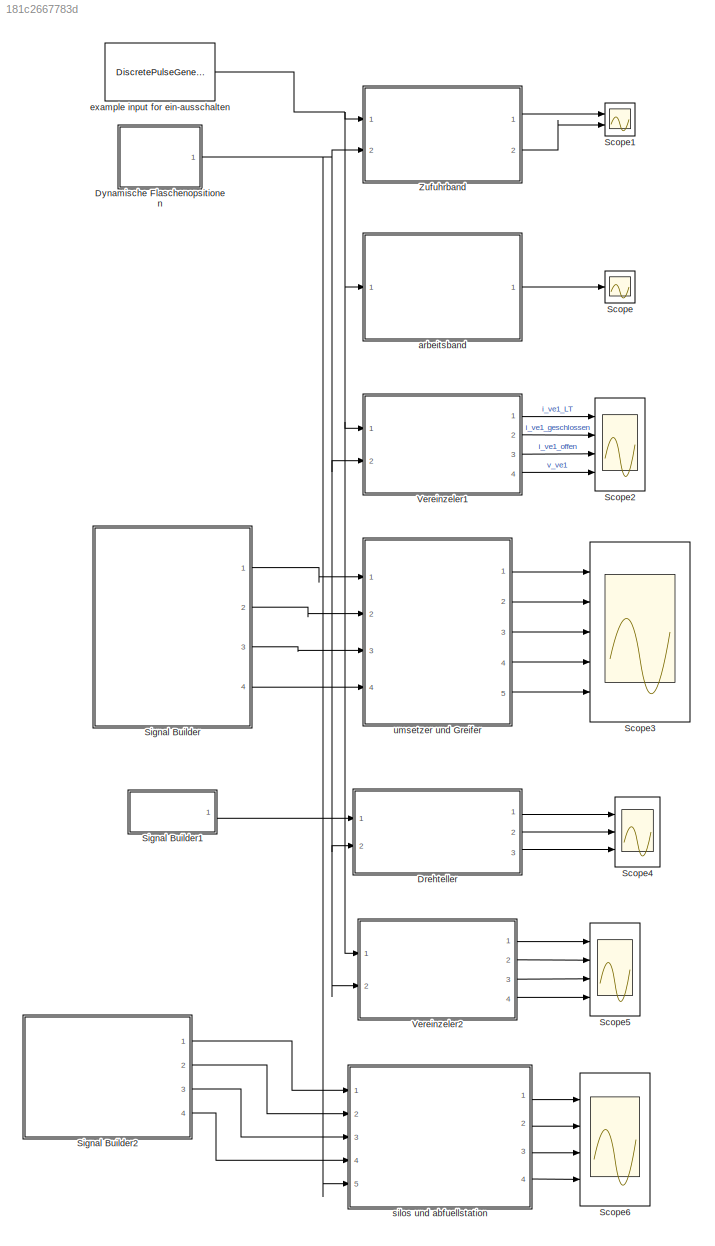
MODEL slx_181c2667783d
KIND model
CONFIG AbsTol = auto
CONFIG EnableMultiTasking = off
CONFIG FixedStep = 0.01
CONFIG MaxStep = auto
CONFIG MinStep = auto
CONFIG RelTol = 1e-3
CONFIG SampleTimeConstraint = Unconstrained
CONFIG SolverName = ode3
CONFIG StartTime = 0.0
CONFIG StopTime = 80
BLOCK [SubSystem] Drehteller
  Ports = [2, 3]
  RequestExecContextInheritance = off
BLOCK [Logic] Drehteller/AND
  AllPortsSameDT = off
  IconShape = distinctive
  OutDataTypeStr = boolean
  Ports = [2, 1]
BLOCK [Logic] Drehteller/AND1
  AllPortsSameDT = off
  IconShape = distinctive
  OutDataTypeStr = boolean
  Ports = [2, 1]
BLOCK [SubSystem] Drehteller/Chart1
  ErrorFcn = Stateflow.Translate.translate
  PermitHierarchicalResolution = ExplicitOnly
  Ports = [1, 1]
  RequestExecContextInheritance = off
  SFBlockType = Chart
  TreatAsAtomicUnit = on
BLOCK [Demux] Drehteller/Chart1/ Demux 
  Outputs = 1
  Ports = [1, 1]
BLOCK [S-Function] Drehteller/Chart1/ SFunction 
  EnableBusSupport = on
  FunctionName = sf_sfun
  PortCounts = [1 2]
  Ports = [1, 2]
  SFcnIsStateOwnerBlock = off
  SFunctionDeploymentMode = off
  Tag = Stateflow S-Function 1
BLOCK [Terminator] Drehteller/Chart1/ Terminator 
BLOCK [Inport] Drehteller/Chart1/i_Drehwinkel
BLOCK [Outport] Drehteller/Chart1/i_teller_ausgerichtet
BLOCK [Reference] Drehteller/Compare To Constant  REF=simulink/Logic and Bit
Operations/Compare
To Constant
  Ports = [1, 1]
  SourceBlock = simulink/Logic and Bit\nOperations/Compare\nTo Constant
  SourceProductBaseCode = SL
  SourceType = Compare To Constant
BLOCK [Reference] Drehteller/Compare To Constant1  REF=simulink/Logic and Bit
Operations/Compare
To Constant
  Ports = [1, 1]
  SourceBlock = simulink/Logic and Bit\nOperations/Compare\nTo Constant
  SourceProductBaseCode = SL
  SourceType = Compare To Constant
BLOCK [Reference] Drehteller/Compare To Constant2  REF=simulink/Logic and Bit
Operations/Compare
To Constant
  Ports = [1, 1]
  SourceBlock = simulink/Logic and Bit\nOperations/Compare\nTo Constant
  SourceProductBaseCode = SL
  SourceType = Compare To Constant
BLOCK [Reference] Drehteller/Compare To Constant3  REF=simulink/Logic and Bit
Operations/Compare
To Constant
  Ports = [1, 1]
  SourceBlock = simulink/Logic and Bit\nOperations/Compare\nTo Constant
  SourceProductBaseCode = SL
  SourceType = Compare To Constant
BLOCK [Reference] Drehteller/Compare To Constant4  REF=simulink/Logic and Bit
Operations/Compare
To Constant
  Ports = [1, 1]
  SourceBlock = simulink/Logic and Bit\nOperations/Compare\nTo Constant
  SourceProductBaseCode = SL
  SourceType = Compare To Constant
BLOCK [Reference] Drehteller/Compare To Constant7  REF=simulink/Logic and Bit
Operations/Compare
To Constant
  Ports = [1, 1]
  SourceBlock = simulink/Logic and Bit\nOperations/Compare\nTo Constant
  SourceProductBaseCode = SL
  SourceType = Compare To Constant
BLOCK [DotProduct] Drehteller/Dot Product1
  OutDataTypeStr = Inherit: Inherit via internal rule
BLOCK [DotProduct] Drehteller/Dot Product2
  OutDataTypeStr = Inherit: Inherit via internal rule
BLOCK [SubSystem] Drehteller/Drehteller
  Ports = [1, 2]
  RequestExecContextInheritance = off
BLOCK [Constant] Drehteller/Drehteller/Constant
  Value = -MRK/I
BLOCK [DeadZone] Drehteller/Drehteller/Dead Zone
BLOCK [Gain] Drehteller/Drehteller/Gain
  Gain = U
BLOCK [Gain] Drehteller/Drehteller/Gain1
  Gain = K*PHI*igetr/Ra/I
BLOCK [Gain] Drehteller/Drehteller/Gain2
  Gain = -K^2*PHI^2*igetr^2/Ra/I
BLOCK [Gain] Drehteller/Drehteller/Gain3
  Gain = -A/I
BLOCK [Integrator] Drehteller/Drehteller/Integrator
  Ports = [1, 1]
BLOCK [Integrator] Drehteller/Drehteller/Integrator1
  Ports = [1, 1]
BLOCK [Product] Drehteller/Drehteller/Product
  Ports = [2, 1]
BLOCK [Scope] Drehteller/Drehteller/Scope
  Floating = off
  NumInputPorts = 3
  Ports = [3]
  ScopeSpecificationString = Simulink.scopes.TimeScopeBlockCfg('CurrentConfiguration', extmgr.ConfigurationSet(extmgr.Configuration('Core','General UI',true),extmgr.Configuration('Core','Source UI',true),extmgr.Configuration('Sources','WiredSimulink',true,'DataLoggingVariableName','ScopeData1'),extmgr.Configuration('Visuals','Time Domain',true,'SerializedDisplays',{struct('MinYLimReal','-0.125','MaxYLimReal','1.125','YLabelRe...<+1476ch>
BLOCK [Scope] Drehteller/Drehteller/Scope1
  Floating = off
  NumInputPorts = 2
  Ports = [2]
  ScopeSpecificationString = Simulink.scopes.TimeScopeBlockCfg('CurrentConfiguration', extmgr.ConfigurationSet(extmgr.Configuration('Core','General UI',true),extmgr.Configuration('Core','Source UI',true),extmgr.Configuration('Sources','WiredSimulink',true,'DataLoggingVariableName','ScopeData2'),extmgr.Configuration('Visuals','Time Domain',true,'SerializedDisplays',{struct('MinYLimReal','-0.125','MaxYLimReal','1.125','YLabelRe...<+1412ch>
BLOCK [Signum] Drehteller/Drehteller/Sign
BLOCK [Sum] Drehteller/Drehteller/Sum
  Inputs = |++
  NameLocation = top
  Ports = [2, 1]
BLOCK [Sum] Drehteller/Drehteller/Sum1
  Inputs = |++
  Ports = [2, 1]
BLOCK [Sum] Drehteller/Drehteller/Sum2
  Inputs = |++
  Ports = [2, 1]
BLOCK [Outport] Drehteller/Drehteller/alpha
  NameLocation = right
  Port = 2
BLOCK [Inport] Drehteller/Drehteller/o_teller
BLOCK [Outport] Drehteller/Drehteller/omega_teller
BLOCK [Signum] Drehteller/Drehteller/without Daedzone
BLOCK [Inport] Drehteller/Flaschenpositionen
  Port = 2
BLOCK [Logic] Drehteller/OR
  AllPortsSameDT = off
  IconShape = distinctive
  Operator = OR
  OutDataTypeStr = boolean
  Ports = [2, 1]
BLOCK [Inport] Drehteller/O_teller
BLOCK [Reference] Drehteller/Radians to Degrees  REF=simulink_extras/Transformations/Radians
to Degrees
  Ports = [1, 1]
  SourceBlock = simulink_extras/Transformations/Radians\nto Degrees
  SourceProductBaseCode = SL
  SourceType = RadiansToDegrees
BLOCK [Gain] Drehteller/Radius von Drehteller
  Gain = 100/2/pi
BLOCK [Scope] Drehteller/Scope
  Floating = off
  NumInputPorts = 1
  Ports = [1]
  ScopeSpecificationString = Simulink.scopes.TimeScopeBlockCfg('CurrentConfiguration', extmgr.ConfigurationSet(extmgr.Configuration('Core','General UI',true),extmgr.Configuration('Core','Source UI',true),extmgr.Configuration('Sources','WiredSimulink',true,'DataLoggingVariableName','ScopeData10'),extmgr.Configuration('Visuals','Time Domain',true,'SerializedDisplays',{struct('MinYLimReal','-0.125','MaxYLimReal','1.125','YLabelR...<+1350ch>
BLOCK [Scope] Drehteller/Scope1
  Floating = off
  NumInputPorts = 1
  Ports = [1]
  ScopeSpecificationString = Simulink.scopes.TimeScopeBlockCfg('CurrentConfiguration', extmgr.ConfigurationSet(extmgr.Configuration('Core','General UI',true),extmgr.Configuration('Core','Source UI',true),extmgr.Configuration('Sources','WiredSimulink',true,'DataLoggingVariableName','ScopeData6'),extmgr.Configuration('Visuals','Time Domain',true,'SerializedDisplays',{struct('MinYLimReal','-0.125','MaxYLimReal','1.125','YLabelRe...<+1478ch>
BLOCK [Scope] Drehteller/Scope2
  Floating = off
  NumInputPorts = 2
  Ports = [2]
  ScopeSpecificationString = Simulink.scopes.TimeScopeBlockCfg('CurrentConfiguration', extmgr.ConfigurationSet(extmgr.Configuration('Core','General UI',true),extmgr.Configuration('Core','Source UI',true),extmgr.Configuration('Sources','WiredSimulink',true,'DataLoggingVariableName','ScopeData8'),extmgr.Configuration('Visuals','Time Domain',true,'SerializedDisplays',{struct('MinYLimReal','-1.21228','MaxYLimReal','10.91052','YLa...<+1460ch>
BLOCK [Scope] Drehteller/Scope3
  Floating = off
  NumInputPorts = 1
  Ports = [1]
  ScopeSpecificationString = Simulink.scopes.TimeScopeBlockCfg('CurrentConfiguration', extmgr.ConfigurationSet(extmgr.Configuration('Core','General UI',true),extmgr.Configuration('Core','Source UI',true),extmgr.Configuration('Sources','WiredSimulink',true,'DataLoggingVariableName','ScopeData9'),extmgr.Configuration('Visuals','Time Domain',true),extmgr.Configuration('Tools','Plot Navigation',true),extmgr.Configuration('Tools',...<+40ch>
BLOCK [Scope] Drehteller/Scope4
  Floating = off
  NumInputPorts = 1
  Ports = [1]
  ScopeSpecificationString = Simulink.scopes.TimeScopeBlockCfg('CurrentConfiguration', extmgr.ConfigurationSet(extmgr.Configuration('Core','General UI',true),extmgr.Configuration('Core','Source UI',true),extmgr.Configuration('Sources','WiredSimulink',true,'DataLoggingVariableName','ScopeData7'),extmgr.Configuration('Visuals','Time Domain',true,'SerializedDisplays',{struct('MinYLimReal','-0.125','MaxYLimReal','1.125','YLabelRe...<+1478ch>
BLOCK [Outport] Drehteller/i_teller_ausger
BLOCK [Outport] Drehteller/i_teller_behaelter
  Port = 2
BLOCK [Outport] Drehteller/v_teller
  Port = 3
BLOCK [SubSystem] Dynamische Flaschenopsitionen
  Ports = [0, 1]
  RequestExecContextInheritance = off
BLOCK [Outport] Dynamische Flaschenopsitionen/Anfangsposition
BLOCK [Gain] Dynamische Flaschenopsitionen/Bahngeschwindigkeit1
  Gain = 100/5
BLOCK [Integrator] Dynamische Flaschenopsitionen/Integrator1
  Ports = [1, 1]
BLOCK [Scope] Dynamische Flaschenopsitionen/Scope2
  Floating = off
  NumInputPorts = 1
  Ports = [1]
  ScopeSpecificationString = Simulink.scopes.TimeScopeBlockCfg('CurrentConfiguration', extmgr.ConfigurationSet(extmgr.Configuration('Core','General UI',true),extmgr.Configuration('Core','Source UI',true),extmgr.Configuration('Sources','WiredSimulink',true,'DataLoggingVariableName','ScopeData1'),extmgr.Configuration('Visuals','Time Domain',true,'SerializedDisplays',{struct('MinYLimReal','-25.00000','MaxYLimReal','225.00000','Y...<+1883ch>
BLOCK [Sum] Dynamische Flaschenopsitionen/Sum1
  Inputs = |++
  Ports = [2, 1]
BLOCK [Constant] Dynamische Flaschenopsitionen/example input for Flaschenpositionen2
  Value = [0,1,2,3,4,5,6,7,8,9,10,20,25,30,35,40,43,60,63,70,90,100,120,130,190]
BLOCK [DiscretePulseGenerator] Dynamische Flaschenopsitionen/example input for o_band_zufuhr1
  Ports = [0, 1]
  PulseType = Time based
  PulseWidth = 50
BLOCK [Scope] Scope
  Floating = off
  NumInputPorts = 1
  Ports = [1]
  ScopeSpecificationString = Simulink.scopes.TimeScopeBlockCfg('CurrentConfiguration', extmgr.ConfigurationSet(extmgr.Configuration('Core','General UI',true),extmgr.Configuration('Core','Source UI',true),extmgr.Configuration('Sources','WiredSimulink',true,'DataLoggingVariableName','ScopeData3'),extmgr.Configuration('Visuals','Time Domain',true,'SerializedDisplays',{struct('MinYLimReal','-0.41667','MaxYLimReal','3.75','YLabelR...<+1358ch>
BLOCK [Scope] Scope1
  Floating = off
  NumInputPorts = 2
  Ports = [2]
  ScopeSpecificationString = Simulink.scopes.TimeScopeBlockCfg('CurrentConfiguration', extmgr.ConfigurationSet(extmgr.Configuration('Core','General UI',true),extmgr.Configuration('Core','Source UI',true),extmgr.Configuration('Sources','WiredSimulink',true,'DataLoggingVariableName','ScopeData9'),extmgr.Configuration('Visuals','Time Domain',true,'SerializedDisplays',{struct('MinYLimReal','-0.125','MaxYLimReal','1.125','YLabelRe...<+1963ch>
BLOCK [Scope] Scope2
  Floating = off
  NumInputPorts = 4
  Ports = [4]
  ScopeSpecificationString = Simulink.scopes.TimeScopeBlockCfg('CurrentConfiguration', extmgr.ConfigurationSet(extmgr.Configuration('Core','General UI',true),extmgr.Configuration('Core','Source UI',true),extmgr.Configuration('Sources','WiredSimulink',true,'DataLoggingVariableName','ScopeData4'),extmgr.Configuration('Visuals','Time Domain',true,'SerializedDisplays',{struct('MinYLimReal','-0.125','MaxYLimReal','1.125','YLabelRe...<+3412ch>
BLOCK [Scope] Scope3
  Floating = off
  NumInputPorts = 5
  Ports = [5]
  ScopeSpecificationString = Simulink.scopes.TimeScopeBlockCfg('CurrentConfiguration', extmgr.ConfigurationSet(extmgr.Configuration('Core','General UI',true),extmgr.Configuration('Core','Source UI',true),extmgr.Configuration('Sources','WiredSimulink',true,'DataLoggingVariableName','ScopeData5'),extmgr.Configuration('Visuals','Time Domain',true,'SerializedDisplays',{struct('MinYLimReal','-0.125','MaxYLimReal','1.125','YLabelRe...<+4918ch>
BLOCK [Scope] Scope4
  Floating = off
  NumInputPorts = 3
  Ports = [3]
  ScopeSpecificationString = Simulink.scopes.TimeScopeBlockCfg('CurrentConfiguration', extmgr.ConfigurationSet(extmgr.Configuration('Core','General UI',true),extmgr.Configuration('Core','Source UI',true),extmgr.Configuration('Sources','WiredSimulink',true,'DataLoggingVariableName','ScopeData11'),extmgr.Configuration('Visuals','Time Domain',true,'SerializedDisplays',{struct('MinYLimReal','-0.125','MaxYLimReal','1.125','YLabelR...<+2947ch>
BLOCK [Scope] Scope5
  Floating = off
  NumInputPorts = 4
  Ports = [4]
  ScopeSpecificationString = Simulink.scopes.TimeScopeBlockCfg('CurrentConfiguration', extmgr.ConfigurationSet(extmgr.Configuration('Core','General UI',true),extmgr.Configuration('Core','Source UI',true),extmgr.Configuration('Sources','WiredSimulink',true,'DataLoggingVariableName','ScopeData14'),extmgr.Configuration('Visuals','Time Domain',true,'SerializedDisplays',{struct('MinYLimReal','-0.125','MaxYLimReal','1.125','YLabelR...<+3430ch>
BLOCK [Scope] Scope6
  Floating = off
  NumInputPorts = 4
  Ports = [4]
  ScopeSpecificationString = Simulink.scopes.TimeScopeBlockCfg('CurrentConfiguration', extmgr.ConfigurationSet(extmgr.Configuration('Core','General UI',true),extmgr.Configuration('Core','Source UI',true),extmgr.Configuration('Sources','WiredSimulink',true,'DataLoggingVariableName','ScopeData15'),extmgr.Configuration('Visuals','Time Domain',true,'SerializedDisplays',{struct('MinYLimReal','-0.125','MaxYLimReal','1.125','YLabelR...<+3526ch>
BLOCK [SubSystem] Signal Builder
  ClipboardFcn = sigbuilder_block('clipboard');
  CloseFcn = sigbuilder_block('close');
  ContinueFcn = sigbuilder_block('continue');
  CopyFcn = sigbuilder_block('copy');
  DeleteFcn = sigbuilder_block('delete');
  LoadFcn = sigbuilder_block('load',[437.6 199.2 550.4 400 ]);
  MaskHideContents = on
  ModelCloseFcn = sigbuilder_block('modelClose');
  NameChangeFcn = sigbuilder_block('namechange');
  OpenFcn = sigbuilder_block('open',[437.6 199.2 550.4 400 ]);
  PauseFcn = sigbuilder_block('pause');
  Ports = [0, 4]
  PreSaveFcn = sigbuilder_block('preSave');
  RequestExecContextInheritance = off
  StartFcn = sigbuilder_block('start');
  StopFcn = sigbuilder_block('stop');
  Tag = STV Subsys
BLOCK [Demux] Signal Builder/Demux
  DisplayOption = none
  Ports = [1, 4]
  Tag = STV Demux
BLOCK [FromWorkspace] Signal Builder/FromWs
  Tag = STV FromWs
  VariableName = tuvar
BLOCK [Outport] Signal Builder/Signal 1
  Tag = STV Outport
BLOCK [Outport] Signal Builder/Signal 2
  Port = 2
  Tag = STV Outport
BLOCK [Outport] Signal Builder/Signal 3
  Port = 3
  Tag = STV Outport
BLOCK [Outport] Signal Builder/Signal 4
  Port = 4
  Tag = STV Outport
BLOCK [SubSystem] Signal Builder1
  ClipboardFcn = sigbuilder_block('clipboard');
  CloseFcn = sigbuilder_block('close');
  ContinueFcn = sigbuilder_block('continue');
  CopyFcn = sigbuilder_block('copy');
  DeleteFcn = sigbuilder_block('delete');
  LoadFcn = sigbuilder_block('load');
  MaskHideContents = on
  ModelCloseFcn = sigbuilder_block('modelClose');
  NameChangeFcn = sigbuilder_block('namechange');
  OpenFcn = sigbuilder_block('open',[279 117 550.8 361.8 ]);
  PauseFcn = sigbuilder_block('pause');
  Ports = [0, 1]
  PreSaveFcn = sigbuilder_block('preSave');
  RequestExecContextInheritance = off
  StartFcn = sigbuilder_block('start');
  StopFcn = sigbuilder_block('stop');
  Tag = STV Subsys
BLOCK [Demux] Signal Builder1/Demux
  DisplayOption = none
  Outputs = 1
  Ports = [1, 1]
  Tag = STV Demux
BLOCK [FromWorkspace] Signal Builder1/FromWs
  Tag = STV FromWs
  VariableName = tuvar
BLOCK [Outport] Signal Builder1/Signal 1
  Tag = STV Outport
  VectorParamsAs1DForOutWhenUnconnected = off
BLOCK [SubSystem] Signal Builder2
  ClipboardFcn = sigbuilder_block('clipboard');
  CloseFcn = sigbuilder_block('close');
  ContinueFcn = sigbuilder_block('continue');
  CopyFcn = sigbuilder_block('copy');
  DeleteFcn = sigbuilder_block('delete');
  LoadFcn = sigbuilder_block('load');
  MaskHideContents = on
  ModelCloseFcn = sigbuilder_block('modelClose');
  NameChangeFcn = sigbuilder_block('namechange');
  OpenFcn = sigbuilder_block('open',[61.5 156.75 659.25 447 ]);
  PauseFcn = sigbuilder_block('pause');
  Ports = [0, 4]
  PreSaveFcn = sigbuilder_block('preSave');
  RequestExecContextInheritance = off
  StartFcn = sigbuilder_block('start');
  StopFcn = sigbuilder_block('stop');
  Tag = STV Subsys
BLOCK [Demux] Signal Builder2/Demux
  DisplayOption = none
  Ports = [1, 4]
  Tag = STV Demux
BLOCK [FromWorkspace] Signal Builder2/FromWs
  Tag = STV FromWs
  VariableName = tuvar
BLOCK [Outport] Signal Builder2/Signal 1
  Tag = STV Outport
  VectorParamsAs1DForOutWhenUnconnected = off
BLOCK [Outport] Signal Builder2/Signal 2
  Port = 2
  Tag = STV Outport
  VectorParamsAs1DForOutWhenUnconnected = off
BLOCK [Outport] Signal Builder2/Signal 3
  Port = 3
  Tag = STV Outport
  VectorParamsAs1DForOutWhenUnconnected = off
BLOCK [Outport] Signal Builder2/Signal 4
  Port = 4
  Tag = STV Outport
  VectorParamsAs1DForOutWhenUnconnected = off
BLOCK [SubSystem] Vereinzeler1
  Ports = [2, 4]
  RequestExecContextInheritance = off
BLOCK [Logic] Vereinzeler1/AND
  AllPortsSameDT = off
  IconShape = distinctive
  OutDataTypeStr = boolean
  Ports = [2, 1]
BLOCK [Reference] Vereinzeler1/Compare To Constant  REF=simulink/Logic and Bit
Operations/Compare
To Constant
  Ports = [1, 1]
  SourceBlock = simulink/Logic and Bit\nOperations/Compare\nTo Constant
  SourceProductBaseCode = SL
  SourceType = Compare To Constant
BLOCK [Reference] Vereinzeler1/Compare To Constant1  REF=simulink/Logic and Bit
Operations/Compare
To Constant
  Ports = [1, 1]
  SourceBlock = simulink/Logic and Bit\nOperations/Compare\nTo Constant
  SourceProductBaseCode = SL
  SourceType = Compare To Constant
BLOCK [Reference] Vereinzeler1/Compare To Constant2  REF=simulink/Logic and Bit
Operations/Compare
To Constant
  Ports = [1, 1]
  SourceBlock = simulink/Logic and Bit\nOperations/Compare\nTo Constant
  SourceProductBaseCode = SL
  SourceType = Compare To Constant
BLOCK [Reference] Vereinzeler1/Compare To Constant3  REF=simulink/Logic and Bit
Operations/Compare
To Constant
  Ports = [1, 1]
  SourceBlock = simulink/Logic and Bit\nOperations/Compare\nTo Constant
  SourceProductBaseCode = SL
  SourceType = Compare To Constant
BLOCK [Reference] Vereinzeler1/Compare To Constant7  REF=simulink/Logic and Bit
Operations/Compare
To Constant
  Ports = [1, 1]
  SourceBlock = simulink/Logic and Bit\nOperations/Compare\nTo Constant
  SourceProductBaseCode = SL
  SourceType = Compare To Constant
BLOCK [DotProduct] Vereinzeler1/Dot Product1
  OutDataTypeStr = Inherit: Inherit via internal rule
BLOCK [Inport] Vereinzeler1/Flaschenpositionen
  Port = 2
BLOCK [Gain] Vereinzeler1/Gain
  Gain = 16
BLOCK [Integrator] Vereinzeler1/Integrator 0 bis 4
  LimitOutput = on
  LowerSaturationLimit = 0
  Ports = [1, 1]
  UpperSaturationLimit = 4
BLOCK [Logic] Vereinzeler1/NOT
  AllPortsSameDT = off
  IconShape = distinctive
  Operator = NOT
  OutDataTypeStr = boolean
  Ports = [1, 1]
BLOCK [Scope] Vereinzeler1/Scope
  Floating = off
  NumInputPorts = 2
  Ports = [2]
  ScopeSpecificationString = Simulink.scopes.TimeScopeBlockCfg('CurrentConfiguration', extmgr.ConfigurationSet(extmgr.Configuration('Core','General UI',true),extmgr.Configuration('Core','Source UI',true),extmgr.Configuration('Sources','WiredSimulink',true,'DataLoggingVariableName','ScopeData5'),extmgr.Configuration('Visuals','Time Domain',true,'SerializedDisplays',{struct('MinYLimReal','-0.125','MaxYLimReal','1.125','YLabelRe...<+2006ch>
BLOCK [Scope] Vereinzeler1/Scope1
  Floating = off
  NumInputPorts = 1
  Ports = [1]
  ScopeSpecificationString = Simulink.scopes.TimeScopeBlockCfg('CurrentConfiguration', extmgr.ConfigurationSet(extmgr.Configuration('Core','General UI',true),extmgr.Configuration('Core','Source UI',true),extmgr.Configuration('Sources','WiredSimulink',true,'DataLoggingVariableName','ScopeData6'),extmgr.Configuration('Visuals','Time Domain',true,'SerializedDisplays',{struct('MinYLimReal','-0.125','MaxYLimReal','1.125','YLabelRe...<+1478ch>
BLOCK [Scope] Vereinzeler1/Scope2
  Floating = off
  NumInputPorts = 2
  Ports = [2]
  ScopeSpecificationString = Simulink.scopes.TimeScopeBlockCfg('CurrentConfiguration', extmgr.ConfigurationSet(extmgr.Configuration('Core','General UI',true),extmgr.Configuration('Core','Source UI',true),extmgr.Configuration('Sources','WiredSimulink',true,'DataLoggingVariableName','ScopeData11'),extmgr.Configuration('Visuals','Time Domain',true,'SerializedDisplays',{struct('MinYLimReal','-0.125','MaxYLimReal','1.125','YLabelR...<+2067ch>
BLOCK [Scope] Vereinzeler1/Scope3
  Floating = off
  NumInputPorts = 1
  Ports = [1]
  ScopeSpecificationString = Simulink.scopes.TimeScopeBlockCfg('CurrentConfiguration', extmgr.ConfigurationSet(extmgr.Configuration('Core','General UI',true),extmgr.Configuration('Core','Source UI',true),extmgr.Configuration('Sources','WiredSimulink',true,'DataLoggingVariableName','ScopeData12'),extmgr.Configuration('Visuals','Time Domain',true,'SerializedDisplays',{struct('MinYLimReal','-0.5','MaxYLimReal','4.5','YLabelReal'...<+1337ch>
BLOCK [Outport] Vereinzeler1/i_ve1_LT
BLOCK [Outport] Vereinzeler1/i_ve1_geschlossen
  Port = 2
BLOCK [Outport] Vereinzeler1/i_ve1_offen
  Port = 3
BLOCK [Sum] Vereinzeler1/if input = 0 ->-1
  IconShape = rectangular
  Inputs = +-
  Ports = [2, 1]
BLOCK [Inport] Vereinzeler1/o_ve1
BLOCK [Outport] Vereinzeler1/v_ve1
  Port = 4
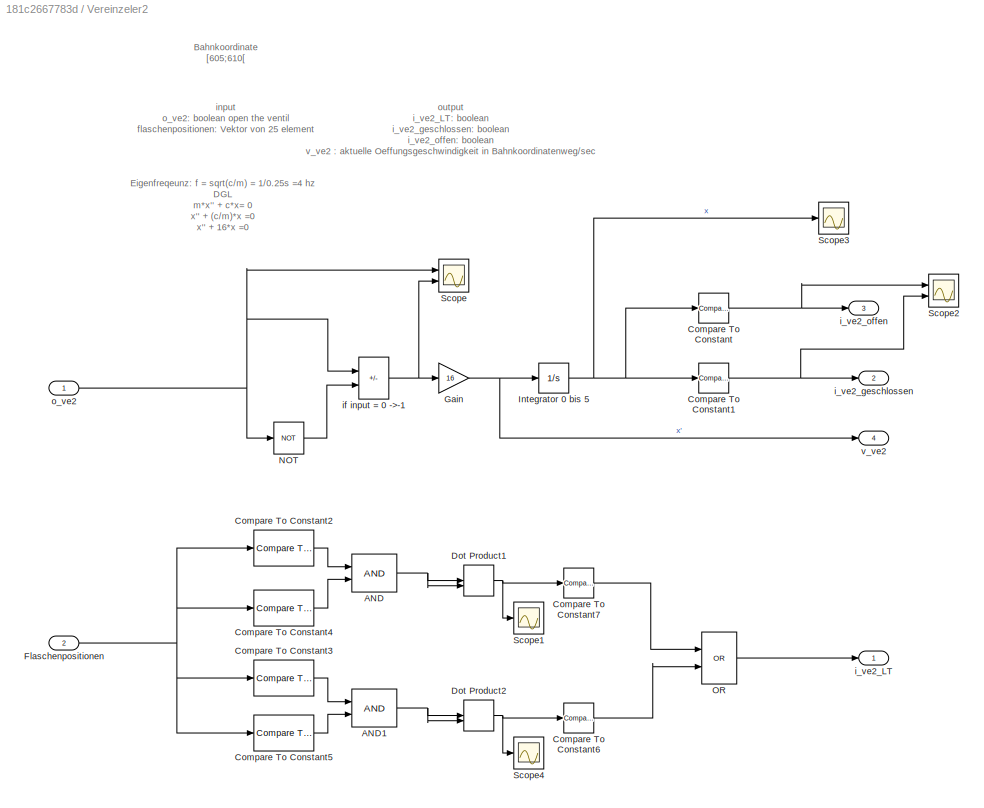
BLOCK [SubSystem] Vereinzeler2
  Ports = [2, 4]
  RequestExecContextInheritance = off
BLOCK [Logic] Vereinzeler2/AND
  AllPortsSameDT = off
  IconShape = distinctive
  OutDataTypeStr = boolean
  Ports = [2, 1]
BLOCK [Logic] Vereinzeler2/AND1
  AllPortsSameDT = off
  IconShape = distinctive
  OutDataTypeStr = boolean
  Ports = [2, 1]
BLOCK [Reference] Vereinzeler2/Compare To Constant  REF=simulink/Logic and Bit
Operations/Compare
To Constant
  Ports = [1, 1]
  SourceBlock = simulink/Logic and Bit\nOperations/Compare\nTo Constant
  SourceProductBaseCode = SL
  SourceType = Compare To Constant
BLOCK [Reference] Vereinzeler2/Compare To Constant1  REF=simulink/Logic and Bit
Operations/Compare
To Constant
  Ports = [1, 1]
  SourceBlock = simulink/Logic and Bit\nOperations/Compare\nTo Constant
  SourceProductBaseCode = SL
  SourceType = Compare To Constant
BLOCK [Reference] Vereinzeler2/Compare To Constant2  REF=simulink/Logic and Bit
Operations/Compare
To Constant
  Ports = [1, 1]
  SourceBlock = simulink/Logic and Bit\nOperations/Compare\nTo Constant
  SourceProductBaseCode = SL
  SourceType = Compare To Constant
BLOCK [Reference] Vereinzeler2/Compare To Constant3  REF=simulink/Logic and Bit
Operations/Compare
To Constant
  Ports = [1, 1]
  SourceBlock = simulink/Logic and Bit\nOperations/Compare\nTo Constant
  SourceProductBaseCode = SL
  SourceType = Compare To Constant
BLOCK [Reference] Vereinzeler2/Compare To Constant4  REF=simulink/Logic and Bit
Operations/Compare
To Constant
  Ports = [1, 1]
  SourceBlock = simulink/Logic and Bit\nOperations/Compare\nTo Constant
  SourceProductBaseCode = SL
  SourceType = Compare To Constant
BLOCK [Reference] Vereinzeler2/Compare To Constant5  REF=simulink/Logic and Bit
Operations/Compare
To Constant
  Ports = [1, 1]
  SourceBlock = simulink/Logic and Bit\nOperations/Compare\nTo Constant
  SourceProductBaseCode = SL
  SourceType = Compare To Constant
BLOCK [Reference] Vereinzeler2/Compare To Constant6  REF=simulink/Logic and Bit
Operations/Compare
To Constant
  Ports = [1, 1]
  SourceBlock = simulink/Logic and Bit\nOperations/Compare\nTo Constant
  SourceProductBaseCode = SL
  SourceType = Compare To Constant
BLOCK [Reference] Vereinzeler2/Compare To Constant7  REF=simulink/Logic and Bit
Operations/Compare
To Constant
  Ports = [1, 1]
  SourceBlock = simulink/Logic and Bit\nOperations/Compare\nTo Constant
  SourceProductBaseCode = SL
  SourceType = Compare To Constant
BLOCK [DotProduct] Vereinzeler2/Dot Product1
  OutDataTypeStr = Inherit: Inherit via internal rule
BLOCK [DotProduct] Vereinzeler2/Dot Product2
  OutDataTypeStr = Inherit: Inherit via internal rule
BLOCK [Inport] Vereinzeler2/Flaschenpositionen
  Port = 2
BLOCK [Gain] Vereinzeler2/Gain
  Gain = 16
BLOCK [Integrator] Vereinzeler2/Integrator 0 bis 5
  LimitOutput = on
  LowerSaturationLimit = 0
  Ports = [1, 1]
  UpperSaturationLimit = 5
BLOCK [Logic] Vereinzeler2/NOT
  AllPortsSameDT = off
  IconShape = distinctive
  Operator = NOT
  OutDataTypeStr = boolean
  Ports = [1, 1]
BLOCK [Logic] Vereinzeler2/OR
  AllPortsSameDT = off
  IconShape = distinctive
  Operator = OR
  OutDataTypeStr = boolean
  Ports = [2, 1]
BLOCK [Scope] Vereinzeler2/Scope
  Floating = off
  NumInputPorts = 2
  Ports = [2]
  ScopeSpecificationString = Simulink.scopes.TimeScopeBlockCfg('CurrentConfiguration', extmgr.ConfigurationSet(extmgr.Configuration('Core','General UI',true),extmgr.Configuration('Core','Source UI',true),extmgr.Configuration('Sources','WiredSimulink',true,'DataLoggingVariableName','ScopeData5'),extmgr.Configuration('Visuals','Time Domain',true,'SerializedDisplays',{struct('MinYLimReal','-0.125','MaxYLimReal','1.125','YLabelRe...<+2006ch>
BLOCK [Scope] Vereinzeler2/Scope1
  Floating = off
  NumInputPorts = 1
  Ports = [1]
  ScopeSpecificationString = Simulink.scopes.TimeScopeBlockCfg('CurrentConfiguration', extmgr.ConfigurationSet(extmgr.Configuration('Core','General UI',true),extmgr.Configuration('Core','Source UI',true),extmgr.Configuration('Sources','WiredSimulink',true,'DataLoggingVariableName','ScopeData12'),extmgr.Configuration('Visuals','Time Domain',true,'SerializedDisplays',{struct('MinYLimReal','-0.125','MaxYLimReal','1.125','YLabelR...<+1479ch>
BLOCK [Scope] Vereinzeler2/Scope2
  Floating = off
  NumInputPorts = 2
  Ports = [2]
  ScopeSpecificationString = Simulink.scopes.TimeScopeBlockCfg('CurrentConfiguration', extmgr.ConfigurationSet(extmgr.Configuration('Core','General UI',true),extmgr.Configuration('Core','Source UI',true),extmgr.Configuration('Sources','WiredSimulink',true,'DataLoggingVariableName','ScopeData11'),extmgr.Configuration('Visuals','Time Domain',true,'SerializedDisplays',{struct('MinYLimReal','-0.125','MaxYLimReal','1.125','YLabelR...<+2067ch>
BLOCK [Scope] Vereinzeler2/Scope3
  Floating = off
  NumInputPorts = 1
  Ports = [1]
  ScopeSpecificationString = Simulink.scopes.TimeScopeBlockCfg('CurrentConfiguration', extmgr.ConfigurationSet(extmgr.Configuration('Core','General UI',true),extmgr.Configuration('Core','Source UI',true),extmgr.Configuration('Sources','WiredSimulink',true,'DataLoggingVariableName','ScopeData12'),extmgr.Configuration('Visuals','Time Domain',true,'SerializedDisplays',{struct('MinYLimReal','-0.5','MaxYLimReal','4.5','YLabelReal'...<+1337ch>
BLOCK [Scope] Vereinzeler2/Scope4
  Floating = off
  NumInputPorts = 1
  Ports = [1]
  ScopeSpecificationString = Simulink.scopes.TimeScopeBlockCfg('CurrentConfiguration', extmgr.ConfigurationSet(extmgr.Configuration('Core','General UI',true),extmgr.Configuration('Core','Source UI',true),extmgr.Configuration('Sources','WiredSimulink',true,'DataLoggingVariableName','ScopeData13'),extmgr.Configuration('Visuals','Time Domain',true,'SerializedDisplays',{struct('MinYLimReal','-0.125','MaxYLimReal','1.125','YLabelR...<+1479ch>
BLOCK [Outport] Vereinzeler2/i_ve2_LT
BLOCK [Outport] Vereinzeler2/i_ve2_geschlossen
  Port = 2
BLOCK [Outport] Vereinzeler2/i_ve2_offen
  Port = 3
BLOCK [Sum] Vereinzeler2/if input = 0 ->-1
  IconShape = rectangular
  Inputs = +-
  Ports = [2, 1]
BLOCK [Inport] Vereinzeler2/o_ve2
BLOCK [Outport] Vereinzeler2/v_ve2
  Port = 4
BLOCK [SubSystem] Zufuhrband
  Ports = [2, 2]
  RequestExecContextInheritance = off
BLOCK [Logic] Zufuhrband/AND1
  AllPortsSameDT = off
  IconShape = distinctive
  OutDataTypeStr = boolean
  Ports = [2, 1]
BLOCK [Scope] Zufuhrband/Andere Methode fuer i_zufuhr_LT
  Floating = off
  NumInputPorts = 1
  Ports = [1]
  ScopeSpecificationString = Simulink.scopes.TimeScopeBlockCfg('CurrentConfiguration', extmgr.ConfigurationSet(extmgr.Configuration('Core','General UI',true),extmgr.Configuration('Core','Source UI',true),extmgr.Configuration('Sources','WiredSimulink',true),extmgr.Configuration('Visuals','Time Domain',true,'SerializedDisplays',{struct('MinYLimReal','-0.125','MaxYLimReal','1.125','YLabelReal','','MinYLimMag','0.00000','MaxYLimM...<+1328ch>
BLOCK [Gain] Zufuhrband/Bahngeschwindigkeit
  Gain = 100/10
BLOCK [Reference] Zufuhrband/Compare To Constant1  REF=simulink/Logic and Bit
Operations/Compare
To Constant
  Ports = [1, 1]
  SourceBlock = simulink/Logic and Bit\nOperations/Compare\nTo Constant
  SourceProductBaseCode = SL
  SourceType = Compare To Constant
BLOCK [Reference] Zufuhrband/Compare To Constant5  REF=simulink/Logic and Bit
Operations/Compare
To Constant
  Ports = [1, 1]
  SourceBlock = simulink/Logic and Bit\nOperations/Compare\nTo Constant
  SourceProductBaseCode = SL
  SourceType = Compare To Constant
BLOCK [Reference] Zufuhrband/Compare To Constant6  REF=simulink/Logic and Bit
Operations/Compare
To Constant
  Ports = [1, 1]
  SourceBlock = simulink/Logic and Bit\nOperations/Compare\nTo Constant
  SourceProductBaseCode = SL
  SourceType = Compare To Constant
BLOCK [Reference] Zufuhrband/Compare To Constant7  REF=simulink/Logic and Bit
Operations/Compare
To Constant
  Ports = [1, 1]
  SourceBlock = simulink/Logic and Bit\nOperations/Compare\nTo Constant
  SourceProductBaseCode = SL
  SourceType = Compare To Constant
BLOCK [DotProduct] Zufuhrband/Dot Product1
  OutDataTypeStr = Inherit: Inherit via internal rule
BLOCK [Inport] Zufuhrband/Flaschenpositionen
  Port = 2
BLOCK [Scope] Zufuhrband/Scope
  Floating = off
  NumInputPorts = 1
  Ports = [1]
  ScopeSpecificationString = Simulink.scopes.TimeScopeBlockCfg('CurrentConfiguration', extmgr.ConfigurationSet(extmgr.Configuration('Core','General UI',true),extmgr.Configuration('Core','Source UI',true),extmgr.Configuration('Sources','WiredSimulink',true,'DataLoggingVariableName','ScopeData10'),extmgr.Configuration('Visuals','Time Domain',true,'SerializedDisplays',{struct('MinYLimReal','-0.5','MaxYLimReal','4.5','YLabelReal'...<+1377ch>
BLOCK [Scope] Zufuhrband/Scope1
  Floating = off
  NumInputPorts = 2
  Ports = [2]
  ScopeSpecificationString = Simulink.scopes.TimeScopeBlockCfg('CurrentConfiguration', extmgr.ConfigurationSet(extmgr.Configuration('Core','General UI',true),extmgr.Configuration('Core','Source UI',true),extmgr.Configuration('Sources','WiredSimulink',true,'DataLoggingVariableName','ScopeData7'),extmgr.Configuration('Visuals','Time Domain',true,'SerializedDisplays',{struct('MinYLimReal','-0.125','MaxYLimReal','1.125','YLabelRe...<+1960ch>
BLOCK [Scope] Zufuhrband/Scope6
  Floating = off
  NumInputPorts = 1
  Ports = [1]
  ScopeSpecificationString = Simulink.scopes.TimeScopeBlockCfg('CurrentConfiguration', extmgr.ConfigurationSet(extmgr.Configuration('Core','General UI',true),extmgr.Configuration('Core','Source UI',true),extmgr.Configuration('Sources','WiredSimulink',true,'DataLoggingVariableName','ScopeData8'),extmgr.Configuration('Visuals','Time Domain',true,'SerializedDisplays',{struct('MinYLimReal','-0.125','MaxYLimReal','1.125','YLabelRe...<+3259ch>
BLOCK [Sum] Zufuhrband/Sum of Elements
  IconShape = rectangular
  Inputs = +
  Ports = [1, 1]
BLOCK [Outport] Zufuhrband/i_zufuhr_LT
BLOCK [Inport] Zufuhrband/o_band_zufuhr
BLOCK [Outport] Zufuhrband/v_band_zufuhr
  Port = 2
BLOCK [SubSystem] arbeitsband
  Ports = [1, 1]
  RequestExecContextInheritance = off
BLOCK [Gain] arbeitsband/Bahngeschwindigkeit
  Gain = 10/3
BLOCK [Scope] arbeitsband/Scope2
  Floating = off
  NumInputPorts = 1
  Ports = [1]
  ScopeSpecificationString = Simulink.scopes.TimeScopeBlockCfg('CurrentConfiguration', extmgr.ConfigurationSet(extmgr.Configuration('Core','General UI',true),extmgr.Configuration('Core','Source UI',true),extmgr.Configuration('Sources','WiredSimulink',true,'DataLoggingVariableName','ScopeData2'),extmgr.Configuration('Visuals','Time Domain',true,'SerializedDisplays',{struct('MinYLimReal','-0.41667','MaxYLimReal','3.75','YLabelR...<+1360ch>
BLOCK [Inport] arbeitsband/o_band_arbeit
BLOCK [Outport] arbeitsband/v_band_arbeit
BLOCK [DiscretePulseGenerator] example input for ein-ausschalten
  Ports = [0, 1]
  PulseType = Time based
  PulseWidth = 50
BLOCK [SubSystem] silos und abfuellstation
  Ports = [5, 4]
  RequestExecContextInheritance = off
BLOCK [Logic] silos und abfuellstation/AND
  AllPortsSameDT = off
  IconShape = distinctive
  OutDataTypeStr = boolean
  Ports = [2, 1]
BLOCK [Logic] silos und abfuellstation/AND1
  AllPortsSameDT = off
  IconShape = distinctive
  OutDataTypeStr = boolean
  Ports = [2, 1]
BLOCK [Reference] silos und abfuellstation/Compare To Constant2  REF=simulink/Logic and Bit
Operations/Compare
To Constant
  Ports = [1, 1]
  SourceBlock = simulink/Logic and Bit\nOperations/Compare\nTo Constant
  SourceProductBaseCode = SL
  SourceType = Compare To Constant
BLOCK [Reference] silos und abfuellstation/Compare To Constant4  REF=simulink/Logic and Bit
Operations/Compare
To Constant
  Ports = [1, 1]
  SourceBlock = simulink/Logic and Bit\nOperations/Compare\nTo Constant
  SourceProductBaseCode = SL
  SourceType = Compare To Constant
BLOCK [Reference] silos und abfuellstation/Compare To Constant7  REF=simulink/Logic and Bit
Operations/Compare
To Constant
  Ports = [1, 1]
  SourceBlock = simulink/Logic and Bit\nOperations/Compare\nTo Constant
  SourceProductBaseCode = SL
  SourceType = Compare To Constant
BLOCK [DotProduct] silos und abfuellstation/Dot Product1
  OutDataTypeStr = Inherit: Inherit via internal rule
BLOCK [Inport] silos und abfuellstation/Flaschenpositionen
  Port = 5
BLOCK [Logic] silos und abfuellstation/NOT
  AllPortsSameDT = off
  IconShape = distinctive
  Operator = NOT
  OutDataTypeStr = boolean
  Ports = [1, 1]
BLOCK [Logic] silos und abfuellstation/OR
  AllPortsSameDT = off
  IconShape = distinctive
  Operator = OR
  OutDataTypeStr = boolean
  Ports = [2, 1]
BLOCK [Scope] silos und abfuellstation/Scope
  Floating = off
  NumInputPorts = 1
  Ports = [1]
  ScopeSpecificationString = Simulink.scopes.TimeScopeBlockCfg('CurrentConfiguration', extmgr.ConfigurationSet(extmgr.Configuration('Core','General UI',true),extmgr.Configuration('Core','Source UI',true),extmgr.Configuration('Sources','WiredSimulink',true,'DataLoggingVariableName','ScopeData20'),extmgr.Configuration('Visuals','Time Domain',true,'SerializedDisplays',{struct('MinYLimReal','-0.125','MaxYLimReal','1.125','YLabelR...<+1397ch>
BLOCK [Scope] silos und abfuellstation/Scope1
  Floating = off
  NumInputPorts = 1
  Ports = [1]
  ScopeSpecificationString = Simulink.scopes.TimeScopeBlockCfg('CurrentConfiguration', extmgr.ConfigurationSet(extmgr.Configuration('Core','General UI',true),extmgr.Configuration('Core','Source UI',true),extmgr.Configuration('Sources','WiredSimulink',true,'DataLoggingVariableName','ScopeData19'),extmgr.Configuration('Visuals','Time Domain',true,'SerializedDisplays',{struct('MinYLimReal','-0.125','MaxYLimReal','1.125','YLabelR...<+1479ch>
BLOCK [Scope] silos und abfuellstation/Scope2
  Floating = off
  NumInputPorts = 2
  Ports = [2]
  ScopeSpecificationString = Simulink.scopes.TimeScopeBlockCfg('CurrentConfiguration', extmgr.ConfigurationSet(extmgr.Configuration('Core','General UI',true),extmgr.Configuration('Core','Source UI',true),extmgr.Configuration('Sources','WiredSimulink',true,'DataLoggingVariableName','ScopeData17'),extmgr.Configuration('Visuals','Time Domain',true,'SerializedDisplays',{struct('MinYLimReal','-0.125','MaxYLimReal','1.125','YLabelR...<+1958ch>
BLOCK [Scope] silos und abfuellstation/Scope3
  Floating = off
  NumInputPorts = 1
  Ports = [1]
  ScopeSpecificationString = Simulink.scopes.TimeScopeBlockCfg('CurrentConfiguration', extmgr.ConfigurationSet(extmgr.Configuration('Core','General UI',true),extmgr.Configuration('Core','Source UI',true),extmgr.Configuration('Sources','WiredSimulink',true,'DataLoggingVariableName','ScopeData21'),extmgr.Configuration('Visuals','Time Domain',true,'SerializedDisplays',{struct('MinYLimReal','-0.125','MaxYLimReal','1.125','YLabelR...<+1379ch>
BLOCK [Scope] silos und abfuellstation/Scope4
  Floating = off
  NumInputPorts = 1
  Ports = [1]
  ScopeSpecificationString = Simulink.scopes.TimeScopeBlockCfg('CurrentConfiguration', extmgr.ConfigurationSet(extmgr.Configuration('Core','General UI',true),extmgr.Configuration('Core','Source UI',true),extmgr.Configuration('Sources','WiredSimulink',true,'DataLoggingVariableName','ScopeData23'),extmgr.Configuration('Visuals','Time Domain',true,'SerializedDisplays',{struct('MinYLimReal','-0.125','MaxYLimReal','1.125','YLabelR...<+1382ch>
BLOCK [Inport] silos und abfuellstation/Silo1_gefuellt
  Port = 3
BLOCK [Inport] silos und abfuellstation/Silo2_gefuellt
  Port = 4
BLOCK [SubSystem] silos und abfuellstation/Subsystem
  Ports = [2, 2]
  RequestExecContextInheritance = off
BLOCK [Integrator] silos und abfuellstation/Subsystem/ init 10, Integrator 0 bis 10
  ExternalReset = rising
  InitialCondition = 10
  LimitOutput = on
  LowerSaturationLimit = 0
  Ports = [2, 1]
  UpperSaturationLimit = 10
BLOCK [Logic] silos und abfuellstation/Subsystem/AND
  AllPortsSameDT = off
  IconShape = distinctive
  OutDataTypeStr = boolean
  Ports = [2, 1]
BLOCK [Reference] silos und abfuellstation/Subsystem/Compare To Constant  REF=simulink/Logic and Bit
Operations/Compare
To Constant
  Ports = [1, 1]
  SourceBlock = simulink/Logic and Bit\nOperations/Compare\nTo Constant
  SourceProductBaseCode = SL
  SourceType = Compare To Constant
BLOCK [Reference] silos und abfuellstation/Subsystem/Compare To Constant1  REF=simulink/Logic and Bit
Operations/Compare
To Constant
  Ports = [1, 1]
  SourceBlock = simulink/Logic and Bit\nOperations/Compare\nTo Constant
  SourceProductBaseCode = SL
  SourceType = Compare To Constant
BLOCK [Logic] silos und abfuellstation/Subsystem/NOT
  AllPortsSameDT = off
  IconShape = distinctive
  NameLocation = left
  Operator = NOT
  OutDataTypeStr = boolean
  Ports = [1, 1]
BLOCK [Scope] silos und abfuellstation/Subsystem/Scope1
  Floating = off
  NumInputPorts = 2
  Ports = [2]
  ScopeSpecificationString = Simulink.scopes.TimeScopeBlockCfg('CurrentConfiguration', extmgr.ConfigurationSet(extmgr.Configuration('Core','General UI',true),extmgr.Configuration('Core','Source UI',true),extmgr.Configuration('Sources','WiredSimulink',true,'DataLoggingVariableName','ScopeData16'),extmgr.Configuration('Visuals','Time Domain',true,'SerializedDisplays',{struct('MinYLimReal','-0.125','MaxYLimReal','1.125','YLabelR...<+2040ch>
BLOCK [Scope] silos und abfuellstation/Subsystem/Scope2
  Floating = off
  NumInputPorts = 1
  Ports = [1]
  ScopeSpecificationString = Simulink.scopes.TimeScopeBlockCfg('CurrentConfiguration', extmgr.ConfigurationSet(extmgr.Configuration('Core','General UI',true),extmgr.Configuration('Core','Source UI',true),extmgr.Configuration('Sources','WiredSimulink',true,'DataLoggingVariableName','ScopeData18'),extmgr.Configuration('Visuals','Time Domain',true,'SerializedDisplays',{struct('MinYLimReal','-0.125','MaxYLimReal','1.125','YLabelR...<+1397ch>
BLOCK [Scope] silos und abfuellstation/Subsystem/Scope3
  Floating = off
  NumInputPorts = 3
  Ports = [3]
  ScopeSpecificationString = Simulink.scopes.TimeScopeBlockCfg('CurrentConfiguration', extmgr.ConfigurationSet(extmgr.Configuration('Core','General UI',true),extmgr.Configuration('Core','Source UI',true),extmgr.Configuration('Sources','WiredSimulink',true,'DataLoggingVariableName','ScopeData22'),extmgr.Configuration('Visuals','Time Domain',true,'SerializedDisplays',{struct('MinYLimReal','-0.125','MaxYLimReal','1.125','YLabelR...<+2691ch>
BLOCK [Outport] silos und abfuellstation/Subsystem/i_silo_leer
BLOCK [Outport] silos und abfuellstation/Subsystem/i_silo_voll
  Port = 2
BLOCK [Inport] silos und abfuellstation/Subsystem/o_silo
BLOCK [Inport] silos und abfuellstation/Subsystem/silo_gefuellt
  Port = 2
BLOCK [Gain] silos und abfuellstation/Subsystem/volumenstrom
  Gain = -1
BLOCK [SubSystem] silos und abfuellstation/Subsystem1
  Ports = [2, 2]
  RequestExecContextInheritance = off
BLOCK [Integrator] silos und abfuellstation/Subsystem1/ init 10, Integrator 0 bis 10
  ExternalReset = rising
  InitialCondition = 10
  LimitOutput = on
  LowerSaturationLimit = 0
  Ports = [2, 1]
  UpperSaturationLimit = 10
BLOCK [Logic] silos und abfuellstation/Subsystem1/AND
  AllPortsSameDT = off
  IconShape = distinctive
  OutDataTypeStr = boolean
  Ports = [2, 1]
BLOCK [Reference] silos und abfuellstation/Subsystem1/Compare To Constant  REF=simulink/Logic and Bit
Operations/Compare
To Constant
  Ports = [1, 1]
  SourceBlock = simulink/Logic and Bit\nOperations/Compare\nTo Constant
  SourceProductBaseCode = SL
  SourceType = Compare To Constant
BLOCK [Reference] silos und abfuellstation/Subsystem1/Compare To Constant1  REF=simulink/Logic and Bit
Operations/Compare
To Constant
  Ports = [1, 1]
  SourceBlock = simulink/Logic and Bit\nOperations/Compare\nTo Constant
  SourceProductBaseCode = SL
  SourceType = Compare To Constant
BLOCK [Logic] silos und abfuellstation/Subsystem1/NOT
  AllPortsSameDT = off
  IconShape = distinctive
  NameLocation = left
  Operator = NOT
  OutDataTypeStr = boolean
  Ports = [1, 1]
BLOCK [Scope] silos und abfuellstation/Subsystem1/Scope1
  Floating = off
  NumInputPorts = 2
  Ports = [2]
  ScopeSpecificationString = Simulink.scopes.TimeScopeBlockCfg('CurrentConfiguration', extmgr.ConfigurationSet(extmgr.Configuration('Core','General UI',true),extmgr.Configuration('Core','Source UI',true),extmgr.Configuration('Sources','WiredSimulink',true,'DataLoggingVariableName','ScopeData16'),extmgr.Configuration('Visuals','Time Domain',true,'SerializedDisplays',{struct('MinYLimReal','-0.125','MaxYLimReal','1.125','YLabelR...<+2040ch>
BLOCK [Scope] silos und abfuellstation/Subsystem1/Scope2
  Floating = off
  NumInputPorts = 1
  Ports = [1]
  ScopeSpecificationString = Simulink.scopes.TimeScopeBlockCfg('CurrentConfiguration', extmgr.ConfigurationSet(extmgr.Configuration('Core','General UI',true),extmgr.Configuration('Core','Source UI',true),extmgr.Configuration('Sources','WiredSimulink',true,'DataLoggingVariableName','ScopeData18'),extmgr.Configuration('Visuals','Time Domain',true,'SerializedDisplays',{struct('MinYLimReal','-0.125','MaxYLimReal','1.125','YLabelR...<+1378ch>
BLOCK [Outport] silos und abfuellstation/Subsystem1/i_silo_leer
BLOCK [Outport] silos und abfuellstation/Subsystem1/i_silo_voll
  Port = 2
BLOCK [Inport] silos und abfuellstation/Subsystem1/o_silo
BLOCK [Inport] silos und abfuellstation/Subsystem1/silo_gefuellt
  Port = 2
BLOCK [Gain] silos und abfuellstation/Subsystem1/volumenstrom
  Gain = -1
BLOCK [Outport] silos und abfuellstation/i_BEKenn_LT_oben
  Port = 4
BLOCK [Outport] silos und abfuellstation/i_BEKenn_LT_unten
  Port = 3
BLOCK [Outport] silos und abfuellstation/i_silo1_leer
BLOCK [Outport] silos und abfuellstation/i_silo2_leer
  Port = 2
BLOCK [Inport] silos und abfuellstation/o_silo1
BLOCK [Inport] silos und abfuellstation/o_silo2
  Port = 2
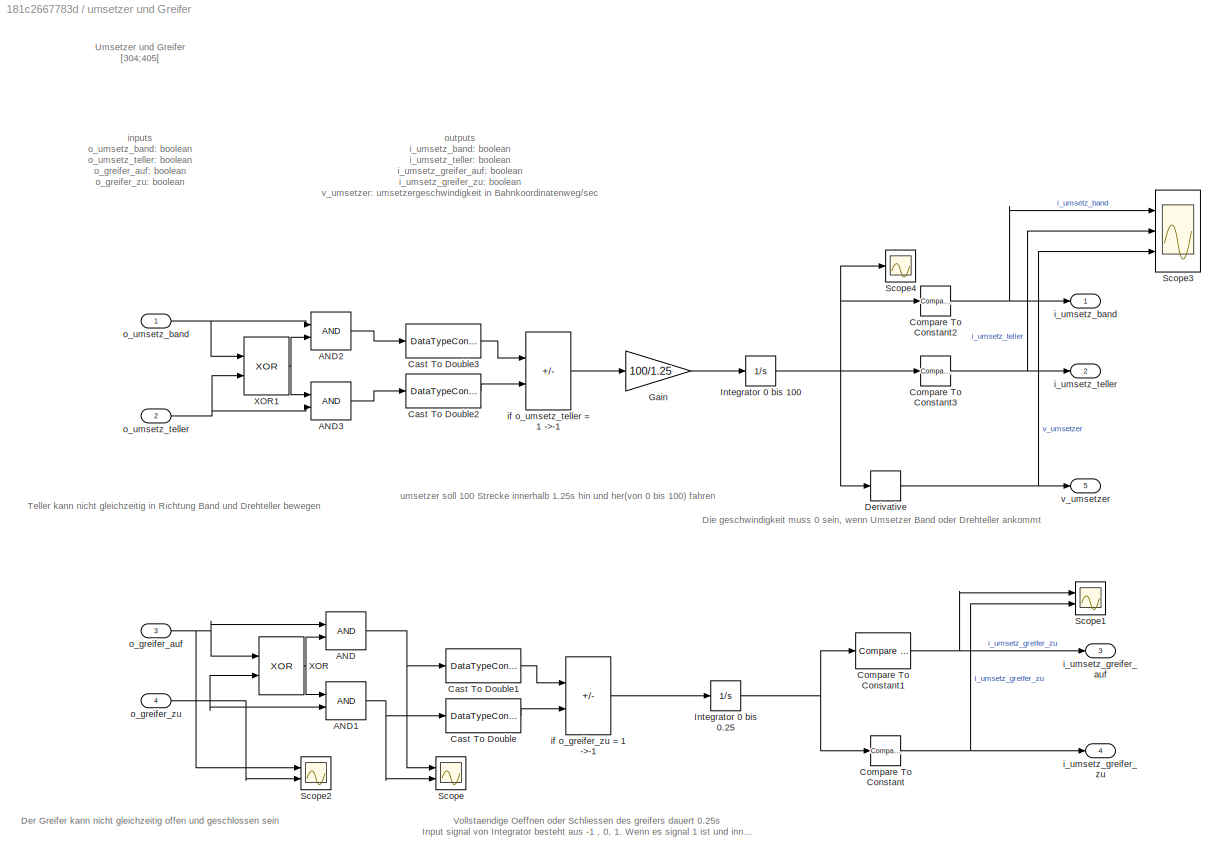
BLOCK [SubSystem] umsetzer und Greifer
  Ports = [4, 5]
  RequestExecContextInheritance = off
BLOCK [Logic] umsetzer und Greifer/AND
  AllPortsSameDT = off
  IconShape = distinctive
  OutDataTypeStr = boolean
  Ports = [2, 1]
BLOCK [Logic] umsetzer und Greifer/AND1
  AllPortsSameDT = off
  IconShape = distinctive
  OutDataTypeStr = boolean
  Ports = [2, 1]
BLOCK [Logic] umsetzer und Greifer/AND2
  AllPortsSameDT = off
  IconShape = distinctive
  OutDataTypeStr = boolean
  Ports = [2, 1]
BLOCK [Logic] umsetzer und Greifer/AND3
  AllPortsSameDT = off
  IconShape = distinctive
  OutDataTypeStr = boolean
  Ports = [2, 1]
BLOCK [DataTypeConversion] umsetzer und Greifer/Cast To Double
  OutDataTypeStr = double
  RndMeth = Floor
  SaturateOnIntegerOverflow = off
BLOCK [DataTypeConversion] umsetzer und Greifer/Cast To Double1
  OutDataTypeStr = double
  RndMeth = Floor
  SaturateOnIntegerOverflow = off
BLOCK [DataTypeConversion] umsetzer und Greifer/Cast To Double2
  OutDataTypeStr = double
  RndMeth = Floor
  SaturateOnIntegerOverflow = off
BLOCK [DataTypeConversion] umsetzer und Greifer/Cast To Double3
  OutDataTypeStr = double
  RndMeth = Floor
  SaturateOnIntegerOverflow = off
BLOCK [Reference] umsetzer und Greifer/Compare To Constant  REF=simulink/Logic and Bit
Operations/Compare
To Constant
  Ports = [1, 1]
  SourceBlock = simulink/Logic and Bit\nOperations/Compare\nTo Constant
  SourceProductBaseCode = SL
  SourceType = Compare To Constant
BLOCK [Reference] umsetzer und Greifer/Compare To Constant1  REF=simulink/Logic and Bit
Operations/Compare
To Constant
  Ports = [1, 1]
  SourceBlock = simulink/Logic and Bit\nOperations/Compare\nTo Constant
  SourceProductBaseCode = SL
  SourceType = Compare To Constant
BLOCK [Reference] umsetzer und Greifer/Compare To Constant2  REF=simulink/Logic and Bit
Operations/Compare
To Constant
  Ports = [1, 1]
  SourceBlock = simulink/Logic and Bit\nOperations/Compare\nTo Constant
  SourceProductBaseCode = SL
  SourceType = Compare To Constant
BLOCK [Reference] umsetzer und Greifer/Compare To Constant3  REF=simulink/Logic and Bit
Operations/Compare
To Constant
  Ports = [1, 1]
  SourceBlock = simulink/Logic and Bit\nOperations/Compare\nTo Constant
  SourceProductBaseCode = SL
  SourceType = Compare To Constant
BLOCK [Derivative] umsetzer und Greifer/Derivative
BLOCK [Gain] umsetzer und Greifer/Gain
  Gain = 100/1.25
BLOCK [Integrator] umsetzer und Greifer/Integrator 0 bis 0.25
  LimitOutput = on
  LowerSaturationLimit = 0
  Ports = [1, 1]
  UpperSaturationLimit = 0.25
BLOCK [Integrator] umsetzer und Greifer/Integrator 0 bis 100
  LimitOutput = on
  LowerSaturationLimit = 0
  Ports = [1, 1]
  UpperSaturationLimit = 100
BLOCK [Scope] umsetzer und Greifer/Scope
  Floating = off
  NumInputPorts = 2
  Ports = [2]
  ScopeSpecificationString = Simulink.scopes.TimeScopeBlockCfg('CurrentConfiguration', extmgr.ConfigurationSet(extmgr.Configuration('Core','General UI',true),extmgr.Configuration('Core','Source UI',true),extmgr.Configuration('Sources','WiredSimulink',true,'DataLoggingVariableName','ScopeData13'),extmgr.Configuration('Visuals','Time Domain',true,'SerializedDisplays',{struct('MinYLimReal','-0.125','MaxYLimReal','1.125','YLabelR...<+2115ch>
BLOCK [Scope] umsetzer und Greifer/Scope1
  Floating = off
  NumInputPorts = 2
  Ports = [2]
  ScopeSpecificationString = Simulink.scopes.TimeScopeBlockCfg('CurrentConfiguration', extmgr.ConfigurationSet(extmgr.Configuration('Core','General UI',true),extmgr.Configuration('Core','Source UI',true),extmgr.Configuration('Sources','WiredSimulink',true,'DataLoggingVariableName','ScopeData2'),extmgr.Configuration('Visuals','Time Domain',true,'SerializedDisplays',{struct('MinYLimReal','-0.125','MaxYLimReal','1.125','YLabelRe...<+2040ch>
BLOCK [Scope] umsetzer und Greifer/Scope2
  Floating = off
  NumInputPorts = 2
  Ports = [2]
  ScopeSpecificationString = Simulink.scopes.TimeScopeBlockCfg('CurrentConfiguration', extmgr.ConfigurationSet(extmgr.Configuration('Core','General UI',true),extmgr.Configuration('Core','Source UI',true),extmgr.Configuration('Sources','WiredSimulink',true,'DataLoggingVariableName','ScopeData1'),extmgr.Configuration('Visuals','Time Domain',true,'SerializedDisplays',{struct('MinYLimReal','-0.25','MaxYLimReal','2.25','YLabelReal...<+2127ch>
BLOCK [Scope] umsetzer und Greifer/Scope3
  Floating = off
  NumInputPorts = 3
  Ports = [3]
  ScopeSpecificationString = Simulink.scopes.TimeScopeBlockCfg('CurrentConfiguration', extmgr.ConfigurationSet(extmgr.Configuration('Core','General UI',true),extmgr.Configuration('Core','Source UI',true),extmgr.Configuration('Sources','WiredSimulink',true,'DataLoggingVariableName','ScopeData3'),extmgr.Configuration('Visuals','Time Domain',true,'SerializedDisplays',{struct('MinYLimReal','-0.125','MaxYLimReal','1.125','YLabelRe...<+2688ch>
BLOCK [Scope] umsetzer und Greifer/Scope4
  Floating = off
  NumInputPorts = 1
  Ports = [1]
  ScopeSpecificationString = Simulink.scopes.TimeScopeBlockCfg('CurrentConfiguration', extmgr.ConfigurationSet(extmgr.Configuration('Core','General UI',true),extmgr.Configuration('Core','Source UI',true),extmgr.Configuration('Sources','WiredSimulink',true,'DataLoggingVariableName','ScopeData4'),extmgr.Configuration('Visuals','Time Domain',true,'SerializedDisplays',{struct('MinYLimReal','-12.5','MaxYLimReal','112.5','YLabelRea...<+1365ch>
BLOCK [Logic] umsetzer und Greifer/XOR
  AllPortsSameDT = off
  IconShape = distinctive
  Operator = XOR
  OutDataTypeStr = boolean
  Ports = [2, 1]
BLOCK [Logic] umsetzer und Greifer/XOR1
  AllPortsSameDT = off
  IconShape = distinctive
  Operator = XOR
  OutDataTypeStr = boolean
  Ports = [2, 1]
BLOCK [Outport] umsetzer und Greifer/i_umsetz_band
BLOCK [Outport] umsetzer und Greifer/i_umsetz_greifer_auf
  Port = 3
BLOCK [Outport] umsetzer und Greifer/i_umsetz_greifer_zu
  Port = 4
BLOCK [Outport] umsetzer und Greifer/i_umsetz_teller
  Port = 2
BLOCK [Sum] umsetzer und Greifer/if o_greifer_zu = 1 ->-1
  IconShape = rectangular
  Inputs = +-
  Ports = [2, 1]
BLOCK [Sum] umsetzer und Greifer/if o_umsetz_teller = 1 ->-1
  IconShape = rectangular
  Inputs = +-
  Ports = [2, 1]
BLOCK [Inport] umsetzer und Greifer/o_greifer_auf
  Port = 3
BLOCK [Inport] umsetzer und Greifer/o_greifer_zu
  Port = 4
BLOCK [Inport] umsetzer und Greifer/o_umsetz_band
BLOCK [Inport] umsetzer und Greifer/o_umsetz_teller
  Port = 2
BLOCK [Outport] umsetzer und Greifer/v_umsetzer
  Port = 5
ANNOTATION Drehteller: Bahnkoordinate [405;505[
ANNOTATION Drehteller: Winkelgeschwindigkeit rad/s soll zu Bahngeschwindigkeit gerechnet werden Bahngeschwindigkeit = radius*Winkelgeschwindigkeit (radius bei Drehteller ist 100/2)
ANNOTATION Drehteller: inputs O_teller: boolean flaschenpositionen: Vektor von 25 element
ANNOTATION Drehteller: output i_teller_ausger: boolean i_teller_behaelter: boolean v_teller: geschwindigkeit
ANNOTATION Vereinzeler1: output i_ve1_LT: boolean (ist 1, wenn sich Flasche in den Bahnkoordinaten ]199,5;202,5[ befindet) i_ve1_geschlossen: boolean (Ist 1, wenn Vereinzeler 1 sich in Ausgangsstellung (geschlossen) befindet, sonst 0) i_ve1_offen: boolean (Ist 1, wenn Vereinzeler 1 vollständig geoeffnet ist, sonst 0) v_ve1 : aktuelle Oeffungsgeschwindigkeit in Bahnkoordinatenweg/sec
ANNOTATION Vereinzeler1: Bahnkoordinate [201;205[
ANNOTATION Vereinzeler1: Eigenfreqeunz: f = sqrt(c/m) = 1/0.25s =4 hz DGL m*x'' + c*x= 0 x'' + (c/m)*x =0 x'' + 16*x =0
ANNOTATION Vereinzeler1: input o_ve1: boolean open the ventil flaschenpositionen: Vektor von 25 element
ANNOTATION Vereinzeler2: output i_ve2_LT: boolean i_ve2_geschlossen: boolean i_ve2_offen: boolean v_ve2 : aktuelle Oeffungsgeschwindigkeit in Bahnkoordinatenweg/sec
ANNOTATION Vereinzeler2: Bahnkoordinate [605;610[
ANNOTATION Vereinzeler2: Eigenfreqeunz: f = sqrt(c/m) = 1/0.25s =4 hz DGL m*x'' + c*x= 0 x'' + (c/m)*x =0 x'' + 16*x =0
ANNOTATION Vereinzeler2: input o_ve2: boolean open the ventil flaschenpositionen: Vektor von 25 element
ANNOTATION Zufuhrband: Bahnkoordinaten ]0;101[ (100 punkte) inputs o_band_zufuhr : boolean Flaschenpositionen: vektor mit 25 Elemente
ANNOTATION Zufuhrband: outputs i_zufur_LT: skalar v_band_zufuhr : Bahngeschwindigkeit in Bahnkoordinatenweg/sec
ANNOTATION arbeitsband: bahnkoordinaten : [101;201[ input o_band_arbeit : boolean output v_band_arbeit : aktuelle Bandgeschwindigekit in Bahnkoordinatenweg/sec (10/3)
ANNOTATION silos und abfuellstation: inputs o_silo1: boolean o_silo2: boolean Silo1_gefuellt: rising edge Silo2_gefuellt: rising edge Flaschenpositionen: 25 vektoren
ANNOTATION silos und abfuellstation: mann muss denken... obwohl silo_gefuellt 1 ist,kann gleichzeitig ventil geoeffnet werden
ANNOTATION silos und abfuellstation: outputs i_silo1_leer: boolean i_silo2_leer: boolean i_BEKenn_LT_unten: boolean i_umsetz_greifer_zu: boolean i_BEKenn_LT_oben: boolean
ANNOTATION umsetzer und Greifer: Der Greifer kann nicht gleichzeitig offen und geschlossen sein
ANNOTATION umsetzer und Greifer: Die geschwindigkeit muss 0 sein, wenn Umsetzer Band oder Drehteller ankommt
ANNOTATION umsetzer und Greifer: Teller kann nicht gleichzeitig in Richtung Band und Drehteller bewegen
ANNOTATION umsetzer und Greifer: Umsetzer und Greifer [304;405[
ANNOTATION umsetzer und Greifer: Vollstaendige Oeffnen oder Schliessen des greifers dauert 0.25s Input signal von Integrator besteht aus -1 , 0, 1. Wenn es signal 1 ist und innde halb 0.25s integriert wird, der gebnisse wird 0.25
ANNOTATION umsetzer und Greifer: inputs o_umsetz_band: boolean o_umsetz_teller: boolean o_greifer_auf: boolean o_greifer_zu: boolean
ANNOTATION umsetzer und Greifer: outputs i_umsetz_band: boolean i_umsetz_teller: boolean i_umsetz_greifer_auf: boolean i_umsetz_greifer_zu: boolean v_umsetzer: umsetzergeschwindigkeit in Bahnkoordinatenweg/sec
ANNOTATION umsetzer und Greifer: umsetzer soll 100 Strecke innerhalb 1.25s hin und her(von 0 bis 100) fahren
NET Drehteller/AND1:1 -> Drehteller/Dot Product2:1, Drehteller/Dot Product2:2
NET Drehteller/AND:1 -> Drehteller/Dot Product1:1, Drehteller/Dot Product1:2
NET Drehteller/Chart1:1 -> Drehteller/Scope2:2, Drehteller/i_teller_ausger:1
LINE Drehteller/Compare To Constant1:1 -> Drehteller/AND1:1
LINE Drehteller/Compare To Constant2:1 -> Drehteller/AND:2
LINE Drehteller/Compare To Constant3:1 -> Drehteller/AND1:2
LINE Drehteller/Compare To Constant4:1 -> Drehteller/OR:2
LINE Drehteller/Compare To Constant7:1 -> Drehteller/OR:1
LINE Drehteller/Compare To Constant:1 -> Drehteller/AND:1
NET Drehteller/Dot Product1:1 -> Drehteller/Compare To Constant7:1, Drehteller/Scope1:1
NET Drehteller/Dot Product2:1 -> Drehteller/Compare To Constant4:1, Drehteller/Scope4:1
LINE Drehteller/Drehteller/Constant:1 -> Drehteller/Drehteller/Product:1
NET Drehteller/Drehteller/Dead Zone:1 -> Drehteller/Drehteller/Scope:2, Drehteller/Drehteller/Sign:1
LINE Drehteller/Drehteller/Gain1:1 -> Drehteller/Drehteller/Sum:1
LINE Drehteller/Drehteller/Gain2:1 -> Drehteller/Drehteller/Sum:2
LINE Drehteller/Drehteller/Gain3:1 -> Drehteller/Drehteller/Sum2:2
LINE Drehteller/Drehteller/Gain:1 -> Drehteller/Drehteller/Gain1:1
LINE Drehteller/Drehteller/Integrator1:1 -> Drehteller/Drehteller/alpha:1
NET Drehteller/Drehteller/Integrator:1 -> Drehteller/Drehteller/Dead Zone:1, Drehteller/Drehteller/Gain2:1, Drehteller/Drehteller/Gain3:1, Drehteller/Drehteller/Integrator1:1, Drehteller/Drehteller/Scope:1, Drehteller/Drehteller/omega_teller:1, Drehteller/Drehteller/without Daedzone:1
LINE Drehteller/Drehteller/Product:1 -> Drehteller/Drehteller/Sum1:2
NET Drehteller/Drehteller/Sign:1 -> Drehteller/Drehteller/Product:2, Drehteller/Drehteller/Scope1:1, Drehteller/Drehteller/Scope:3
LINE Drehteller/Drehteller/Sum1:1 -> Drehteller/Drehteller/Sum2:1
LINE Drehteller/Drehteller/Sum2:1 -> Drehteller/Drehteller/Integrator:1
LINE Drehteller/Drehteller/Sum:1 -> Drehteller/Drehteller/Sum1:1
LINE Drehteller/Drehteller/o_teller:1 -> Drehteller/Drehteller/Gain:1
LINE Drehteller/Drehteller/without Daedzone:1 -> Drehteller/Drehteller/Scope1:2
NET Drehteller/Drehteller:1 -> Drehteller/Radius von Drehteller:1, Drehteller/Scope3:1
LINE Drehteller/Drehteller:2 -> Drehteller/Radians to Degrees:1
NET Drehteller/Flaschenpositionen:1 -> Drehteller/Compare To Constant1:1, Drehteller/Compare To Constant2:1, Drehteller/Compare To Constant3:1, Drehteller/Compare To Constant:1
NET Drehteller/OR:1 -> Drehteller/Scope:1, Drehteller/i_teller_behaelter:1
LINE Drehteller/O_teller:1 -> Drehteller/Drehteller:1
LINE Drehteller/Radians to Degrees:1 -> Drehteller/Chart1:1
NET Drehteller/Radius von Drehteller:1 -> Drehteller/Scope2:1, Drehteller/v_teller:1
LINE Drehteller:1 -> Scope4:1
LINE Drehteller:2 -> Scope4:2
LINE Drehteller:3 -> Scope4:3
LINE Dynamische Flaschenopsitionen/Bahngeschwindigkeit1:1 -> Dynamische Flaschenopsitionen/Integrator1:1
LINE Dynamische Flaschenopsitionen/Integrator1:1 -> Dynamische Flaschenopsitionen/Sum1:1
NET Dynamische Flaschenopsitionen/Sum1:1 -> Dynamische Flaschenopsitionen/Anfangsposition:1, Dynamische Flaschenopsitionen/Scope2:1
LINE Dynamische Flaschenopsitionen/example input for Flaschenpositionen2:1 -> Dynamische Flaschenopsitionen/Sum1:2
LINE Dynamische Flaschenopsitionen/example input for o_band_zufuhr1:1 -> Dynamische Flaschenopsitionen/Bahngeschwindigkeit1:1
NET Dynamische Flaschenopsitionen:1 -> Drehteller:2, Vereinzeler1:2, Vereinzeler2:2, Zufuhrband:2, silos und abfuellstation:5
LINE Signal Builder1:1 -> Drehteller:1
LINE Signal Builder2:1 -> silos und abfuellstation:1
LINE Signal Builder2:2 -> silos und abfuellstation:2
LINE Signal Builder2:3 -> silos und abfuellstation:3
LINE Signal Builder2:4 -> silos und abfuellstation:4
LINE Signal Builder:1 -> umsetzer und Greifer:1
LINE Signal Builder:2 -> umsetzer und Greifer:2
LINE Signal Builder:3 -> umsetzer und Greifer:3
LINE Signal Builder:4 -> umsetzer und Greifer:4
NET Vereinzeler1/AND:1 -> Vereinzeler1/Dot Product1:1, Vereinzeler1/Dot Product1:2
NET Vereinzeler1/Compare To Constant1:1 -> Vereinzeler1/Scope2:2, Vereinzeler1/i_ve1_geschlossen:1
LINE Vereinzeler1/Compare To Constant2:1 -> Vereinzeler1/AND:1
LINE Vereinzeler1/Compare To Constant3:1 -> Vereinzeler1/AND:2
LINE Vereinzeler1/Compare To Constant7:1 -> Vereinzeler1/i_ve1_LT:1
NET Vereinzeler1/Compare To Constant:1 -> Vereinzeler1/Scope2:1, Vereinzeler1/i_ve1_offen:1
NET Vereinzeler1/Dot Product1:1 -> Vereinzeler1/Compare To Constant7:1, Vereinzeler1/Scope1:1
NET Vereinzeler1/Flaschenpositionen:1 -> Vereinzeler1/Compare To Constant2:1, Vereinzeler1/Compare To Constant3:1
NET Vereinzeler1/Gain:1 -> Vereinzeler1/Integrator 0 bis 4:1, Vereinzeler1/v_ve1:1
NET Vereinzeler1/Integrator 0 bis 4:1 -> Vereinzeler1/Compare To Constant1:1, Vereinzeler1/Compare To Constant:1, Vereinzeler1/Scope3:1
LINE Vereinzeler1/NOT:1 -> Vereinzeler1/if input = 0 ->-1:2
NET Vereinzeler1/if input = 0 ->-1:1 -> Vereinzeler1/Gain:1, Vereinzeler1/Scope:2
NET Vereinzeler1/o_ve1:1 -> Vereinzeler1/NOT:1, Vereinzeler1/Scope:1, Vereinzeler1/if input = 0 ->-1:1
LINE Vereinzeler1:1 -> Scope2:1
LINE Vereinzeler1:2 -> Scope2:2
LINE Vereinzeler1:3 -> Scope2:3
LINE Vereinzeler1:4 -> Scope2:4
NET Vereinzeler2/AND1:1 -> Vereinzeler2/Dot Product2:1, Vereinzeler2/Dot Product2:2
NET Vereinzeler2/AND:1 -> Vereinzeler2/Dot Product1:1, Vereinzeler2/Dot Product1:2
NET Vereinzeler2/Compare To Constant1:1 -> Vereinzeler2/Scope2:2, Vereinzeler2/i_ve2_geschlossen:1
LINE Vereinzeler2/Compare To Constant2:1 -> Vereinzeler2/AND:1
LINE Vereinzeler2/Compare To Constant3:1 -> Vereinzeler2/AND1:1
LINE Vereinzeler2/Compare To Constant4:1 -> Vereinzeler2/AND:2
LINE Vereinzeler2/Compare To Constant5:1 -> Vereinzeler2/AND1:2
LINE Vereinzeler2/Compare To Constant6:1 -> Vereinzeler2/OR:2
LINE Vereinzeler2/Compare To Constant7:1 -> Vereinzeler2/OR:1
NET Vereinzeler2/Compare To Constant:1 -> Vereinzeler2/Scope2:1, Vereinzeler2/i_ve2_offen:1
NET Vereinzeler2/Dot Product1:1 -> Vereinzeler2/Compare To Constant7:1, Vereinzeler2/Scope1:1
NET Vereinzeler2/Dot Product2:1 -> Vereinzeler2/Compare To Constant6:1, Vereinzeler2/Scope4:1
NET Vereinzeler2/Flaschenpositionen:1 -> Vereinzeler2/Compare To Constant2:1, Vereinzeler2/Compare To Constant3:1, Vereinzeler2/Compare To Constant4:1, Vereinzeler2/Compare To Constant5:1
NET Vereinzeler2/Gain:1 -> Vereinzeler2/Integrator 0 bis 5:1, Vereinzeler2/v_ve2:1
NET Vereinzeler2/Integrator 0 bis 5:1 -> Vereinzeler2/Compare To Constant1:1, Vereinzeler2/Compare To Constant:1, Vereinzeler2/Scope3:1
LINE Vereinzeler2/NOT:1 -> Vereinzeler2/if input = 0 ->-1:2
LINE Vereinzeler2/OR:1 -> Vereinzeler2/i_ve2_LT:1
NET Vereinzeler2/if input = 0 ->-1:1 -> Vereinzeler2/Gain:1, Vereinzeler2/Scope:2
NET Vereinzeler2/o_ve2:1 -> Vereinzeler2/NOT:1, Vereinzeler2/Scope:1, Vereinzeler2/if input = 0 ->-1:1
LINE Vereinzeler2:1 -> Scope5:1
LINE Vereinzeler2:2 -> Scope5:2
LINE Vereinzeler2:3 -> Scope5:3
LINE Vereinzeler2:4 -> Scope5:4
NET Zufuhrband/AND1:1 -> Zufuhrband/Dot Product1:1, Zufuhrband/Dot Product1:2, Zufuhrband/Scope6:1, Zufuhrband/Sum of Elements:1
NET Zufuhrband/Bahngeschwindigkeit:1 -> Zufuhrband/Scope1:2, Zufuhrband/v_band_zufuhr:1
NET Zufuhrband/Compare To Constant1:1 -> Zufuhrband/Scope1:1, Zufuhrband/i_zufuhr_LT:1
LINE Zufuhrband/Compare To Constant5:1 -> Zufuhrband/AND1:1
LINE Zufuhrband/Compare To Constant6:1 -> Zufuhrband/AND1:2
LINE Zufuhrband/Compare To Constant7:1 -> Zufuhrband/Andere Methode fuer i_zufuhr_LT:1
NET Zufuhrband/Dot Product1:1 -> Zufuhrband/Compare To Constant7:1, Zufuhrband/Scope:1
NET Zufuhrband/Flaschenpositionen:1 -> Zufuhrband/Compare To Constant5:1, Zufuhrband/Compare To Constant6:1
LINE Zufuhrband/Sum of Elements:1 -> Zufuhrband/Compare To Constant1:1
LINE Zufuhrband/o_band_zufuhr:1 -> Zufuhrband/Bahngeschwindigkeit:1
LINE Zufuhrband:1 -> Scope1:1
LINE Zufuhrband:2 -> Scope1:2
NET arbeitsband/Bahngeschwindigkeit:1 -> arbeitsband/Scope2:1, arbeitsband/v_band_arbeit:1
LINE arbeitsband/o_band_arbeit:1 -> arbeitsband/Bahngeschwindigkeit:1
LINE arbeitsband:1 -> Scope:1
NET example input for ein-ausschalten:1 -> Vereinzeler1:1, Vereinzeler2:1, Zufuhrband:1, arbeitsband:1
NET silos und abfuellstation/AND1:1 -> silos und abfuellstation/NOT:1, silos und abfuellstation/Scope4:1
NET silos und abfuellstation/AND:1 -> silos und abfuellstation/Dot Product1:1, silos und abfuellstation/Dot Product1:2
LINE silos und abfuellstation/Compare To Constant2:1 -> silos und abfuellstation/AND:1
LINE silos und abfuellstation/Compare To Constant4:1 -> silos und abfuellstation/AND:2
NET silos und abfuellstation/Compare To Constant7:1 -> silos und abfuellstation/AND1:2, silos und abfuellstation/Scope:1, silos und abfuellstation/i_BEKenn_LT_unten:1
NET silos und abfuellstation/Dot Product1:1 -> silos und abfuellstation/Compare To Constant7:1, silos und abfuellstation/Scope1:1
NET silos und abfuellstation/Flaschenpositionen:1 -> silos und abfuellstation/Compare To Constant2:1, silos und abfuellstation/Compare To Constant4:1
LINE silos und abfuellstation/NOT:1 -> silos und abfuellstation/i_BEKenn_LT_oben:1
NET silos und abfuellstation/OR:1 -> silos und abfuellstation/AND1:1, silos und abfuellstation/Scope3:1
LINE silos und abfuellstation/Silo1_gefuellt:1 -> silos und abfuellstation/Subsystem:2
LINE silos und abfuellstation/Silo2_gefuellt:1 -> silos und abfuellstation/Subsystem1:2
NET silos und abfuellstation/Subsystem/ init 10, Integrator 0 bis 10:1 -> silos und abfuellstation/Subsystem/Compare To Constant1:1, silos und abfuellstation/Subsystem/Compare To Constant:1, silos und abfuellstation/Subsystem/Scope3:3
LINE silos und abfuellstation/Subsystem/AND:1 -> silos und abfuellstation/Subsystem/i_silo_voll:1
NET silos und abfuellstation/Subsystem/Compare To Constant1:1 -> silos und abfuellstation/Subsystem/AND:2, silos und abfuellstation/Subsystem/Scope3:1
NET silos und abfuellstation/Subsystem/Compare To Constant:1 -> silos und abfuellstation/Subsystem/NOT:1, silos und abfuellstation/Subsystem/Scope2:1, silos und abfuellstation/Subsystem/i_silo_leer:1
NET silos und abfuellstation/Subsystem/NOT:1 -> silos und abfuellstation/Subsystem/AND:1, silos und abfuellstation/Subsystem/Scope3:2
NET silos und abfuellstation/Subsystem/o_silo:1 -> silos und abfuellstation/Subsystem/Scope1:1, silos und abfuellstation/Subsystem/volumenstrom:1
NET silos und abfuellstation/Subsystem/silo_gefuellt:1 -> silos und abfuellstation/Subsystem/ init 10, Integrator 0 bis 10:2, silos und abfuellstation/Subsystem/Scope1:2
LINE silos und abfuellstation/Subsystem/volumenstrom:1 -> silos und abfuellstation/Subsystem/ init 10, Integrator 0 bis 10:1
NET silos und abfuellstation/Subsystem1/ init 10, Integrator 0 bis 10:1 -> silos und abfuellstation/Subsystem1/Compare To Constant1:1, silos und abfuellstation/Subsystem1/Compare To Constant:1
LINE silos und abfuellstation/Subsystem1/AND:1 -> silos und abfuellstation/Subsystem1/i_silo_voll:1
LINE silos und abfuellstation/Subsystem1/Compare To Constant1:1 -> silos und abfuellstation/Subsystem1/AND:2
NET silos und abfuellstation/Subsystem1/Compare To Constant:1 -> silos und abfuellstation/Subsystem1/NOT:1, silos und abfuellstation/Subsystem1/Scope2:1, silos und abfuellstation/Subsystem1/i_silo_leer:1
LINE silos und abfuellstation/Subsystem1/NOT:1 -> silos und abfuellstation/Subsystem1/AND:1
NET silos und abfuellstation/Subsystem1/o_silo:1 -> silos und abfuellstation/Subsystem1/Scope1:1, silos und abfuellstation/Subsystem1/volumenstrom:1
NET silos und abfuellstation/Subsystem1/silo_gefuellt:1 -> silos und abfuellstation/Subsystem1/ init 10, Integrator 0 bis 10:2, silos und abfuellstation/Subsystem1/Scope1:2
LINE silos und abfuellstation/Subsystem1/volumenstrom:1 -> silos und abfuellstation/Subsystem1/ init 10, Integrator 0 bis 10:1
LINE silos und abfuellstation/Subsystem1:1 -> silos und abfuellstation/i_silo2_leer:1
NET silos und abfuellstation/Subsystem1:2 -> silos und abfuellstation/OR:2, silos und abfuellstation/Scope2:2
LINE silos und abfuellstation/Subsystem:1 -> silos und abfuellstation/i_silo1_leer:1
NET silos und abfuellstation/Subsystem:2 -> silos und abfuellstation/OR:1, silos und abfuellstation/Scope2:1
LINE silos und abfuellstation/o_silo1:1 -> silos und abfuellstation/Subsystem:1
LINE silos und abfuellstation/o_silo2:1 -> silos und abfuellstation/Subsystem1:1
LINE silos und abfuellstation:1 -> Scope6:1
LINE silos und abfuellstation:2 -> Scope6:2
LINE silos und abfuellstation:3 -> Scope6:3
LINE silos und abfuellstation:4 -> Scope6:4
NET umsetzer und Greifer/AND1:1 -> umsetzer und Greifer/Cast To Double:1, umsetzer und Greifer/Scope:2
LINE umsetzer und Greifer/AND2:1 -> umsetzer und Greifer/Cast To Double3:1
LINE umsetzer und Greifer/AND3:1 -> umsetzer und Greifer/Cast To Double2:1
NET umsetzer und Greifer/AND:1 -> umsetzer und Greifer/Cast To Double1:1, umsetzer und Greifer/Scope:1
LINE umsetzer und Greifer/Cast To Double1:1 -> umsetzer und Greifer/if o_greifer_zu = 1 ->-1:1
LINE umsetzer und Greifer/Cast To Double2:1 -> umsetzer und Greifer/if o_umsetz_teller = 1 ->-1:2
LINE umsetzer und Greifer/Cast To Double3:1 -> umsetzer und Greifer/if o_umsetz_teller = 1 ->-1:1
LINE umsetzer und Greifer/Cast To Double:1 -> umsetzer und Greifer/if o_greifer_zu = 1 ->-1:2
NET umsetzer und Greifer/Compare To Constant1:1 -> umsetzer und Greifer/Scope1:1, umsetzer und Greifer/i_umsetz_greifer_auf:1
NET umsetzer und Greifer/Compare To Constant2:1 -> umsetzer und Greifer/Scope3:1, umsetzer und Greifer/i_umsetz_band:1
NET umsetzer und Greifer/Compare To Constant3:1 -> umsetzer und Greifer/Scope3:2, umsetzer und Greifer/i_umsetz_teller:1
NET umsetzer und Greifer/Compare To Constant:1 -> umsetzer und Greifer/Scope1:2, umsetzer und Greifer/i_umsetz_greifer_zu:1
NET umsetzer und Greifer/Derivative:1 -> umsetzer und Greifer/Scope3:3, umsetzer und Greifer/v_umsetzer:1
LINE umsetzer und Greifer/Gain:1 -> umsetzer und Greifer/Integrator 0 bis 100:1
NET umsetzer und Greifer/Integrator 0 bis 0.25:1 -> umsetzer und Greifer/Compare To Constant1:1, umsetzer und Greifer/Compare To Constant:1
NET umsetzer und Greifer/Integrator 0 bis 100:1 -> umsetzer und Greifer/Compare To Constant2:1, umsetzer und Greifer/Compare To Constant3:1, umsetzer und Greifer/Derivative:1, umsetzer und Greifer/Scope4:1
NET umsetzer und Greifer/XOR1:1 -> umsetzer und Greifer/AND2:2, umsetzer und Greifer/AND3:1
NET umsetzer und Greifer/XOR:1 -> umsetzer und Greifer/AND1:1, umsetzer und Greifer/AND:2
LINE umsetzer und Greifer/if o_greifer_zu = 1 ->-1:1 -> umsetzer und Greifer/Integrator 0 bis 0.25:1
LINE umsetzer und Greifer/if o_umsetz_teller = 1 ->-1:1 -> umsetzer und Greifer/Gain:1
NET umsetzer und Greifer/o_greifer_auf:1 -> umsetzer und Greifer/AND:1, umsetzer und Greifer/Scope2:1, umsetzer und Greifer/XOR:1
NET umsetzer und Greifer/o_greifer_zu:1 -> umsetzer und Greifer/AND1:2, umsetzer und Greifer/Scope2:2, umsetzer und Greifer/XOR:2
NET umsetzer und Greifer/o_umsetz_band:1 -> umsetzer und Greifer/AND2:1, umsetzer und Greifer/XOR1:1
NET umsetzer und Greifer/o_umsetz_teller:1 -> umsetzer und Greifer/AND3:2, umsetzer und Greifer/XOR1:2
LINE umsetzer und Greifer:1 -> Scope3:1
LINE umsetzer und Greifer:2 -> Scope3:2
LINE umsetzer und Greifer:3 -> Scope3:3
LINE umsetzer und Greifer:4 -> Scope3:4
LINE umsetzer und Greifer:5 -> Scope3:5
note: NET lines group one-source signal fan-out (src -> all destinations, sorted); 1:1 wires keep LINE
CHART Drehteller/Chart1 states=3 transitions=5
  STATE_LABEL 'start\n'
  STATE_LABEL 'Ausgerichtet\ni_teller_ausgerichtet = 1;'
  STATE_LABEL 'nichtAusgerichtet\ni_teller_ausgerichtet = 0;'
CHART  states=0 transitions=0
